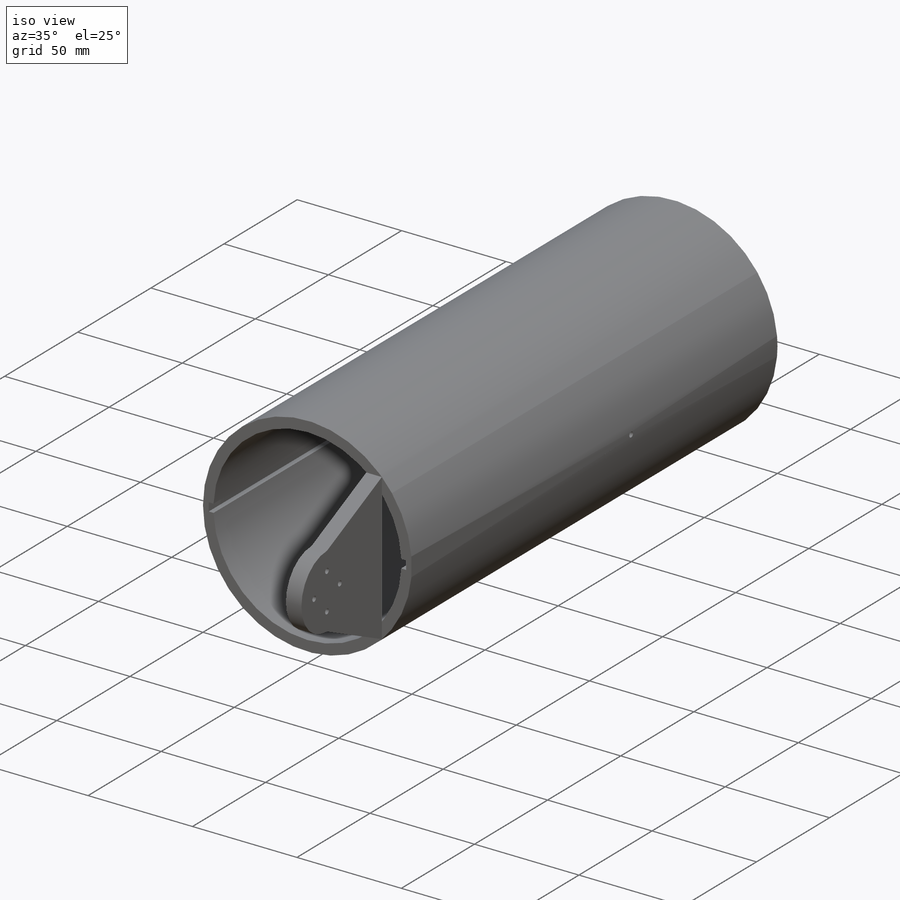
[diagram: iso view]
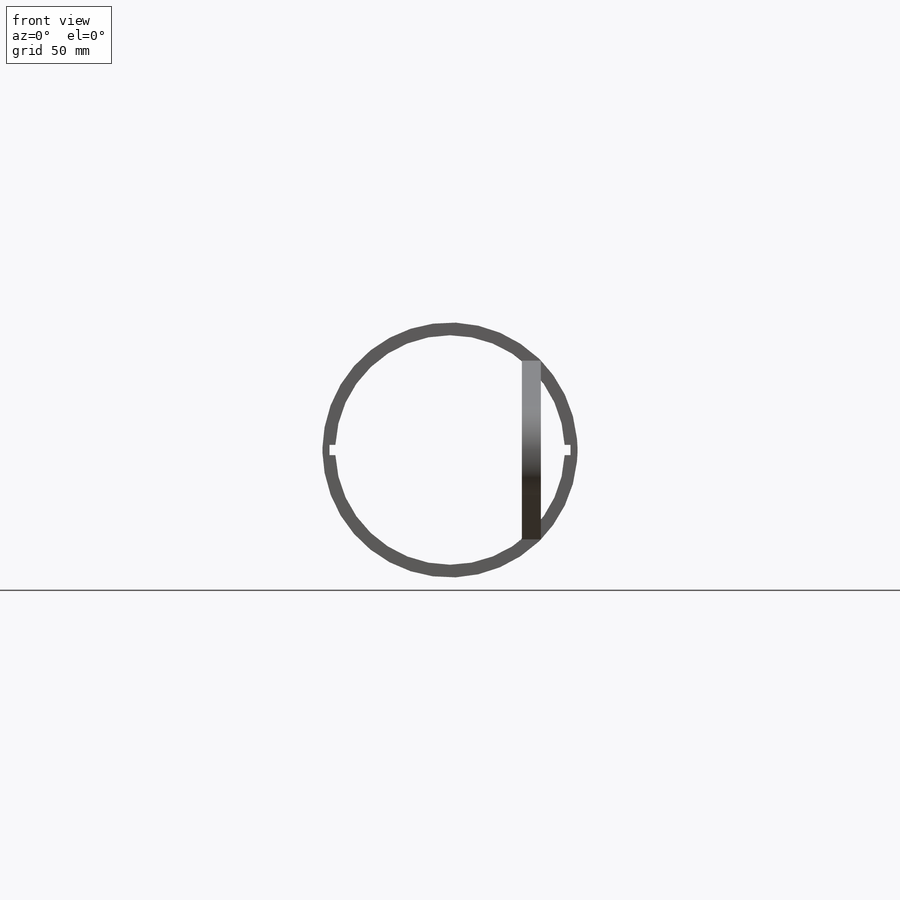
[diagram: front view]
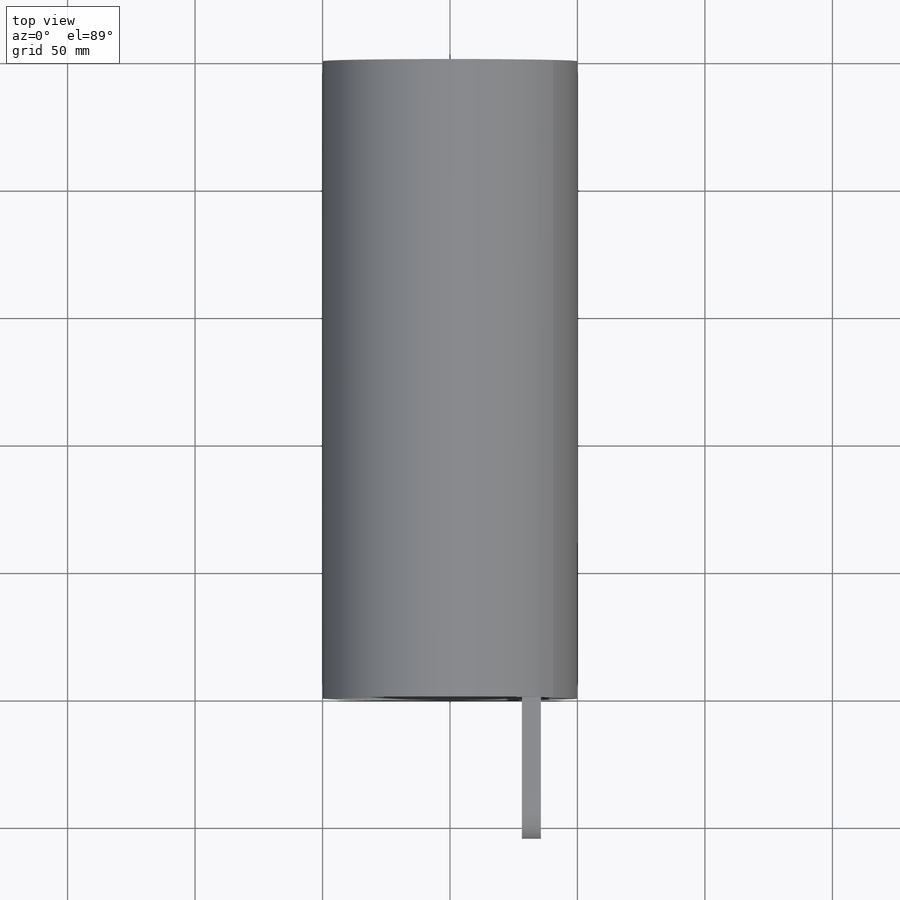
[diagram: top view]
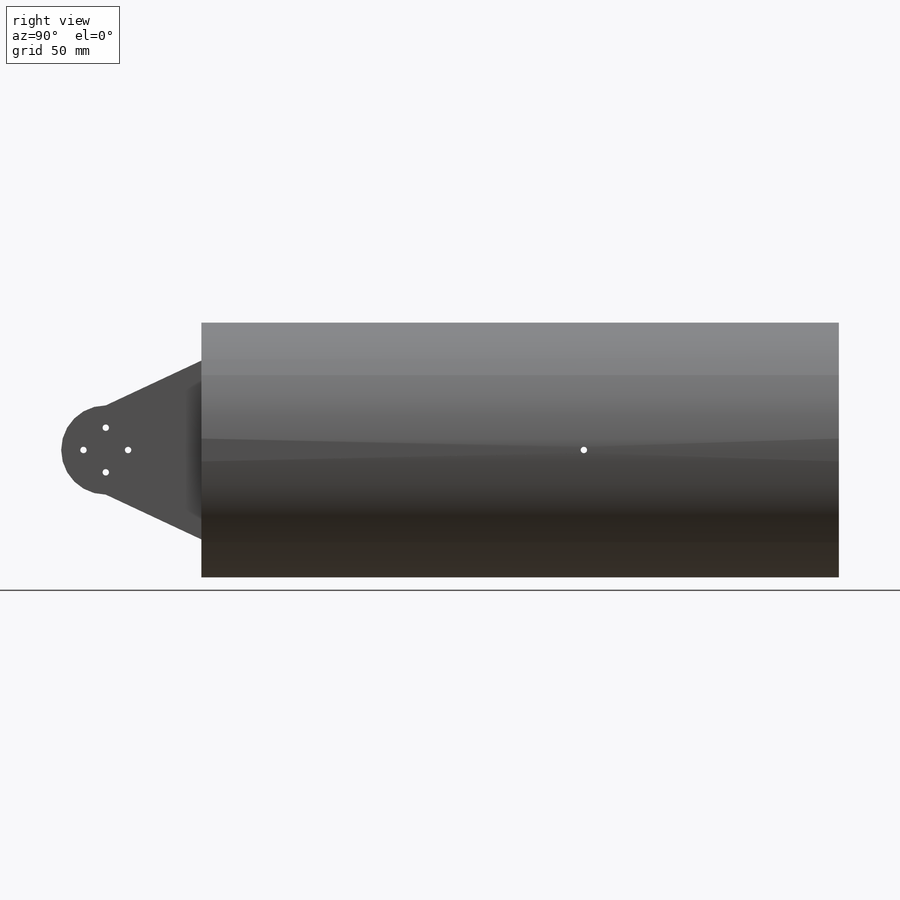
[diagram: right view]
SOLIDWORKS PART (.sldprt)
format: sldprt  version: not decoded by parser v0  size: 220,672 bytes
history: native  units: mm
features: sketch x6, cut_extrude x4, extrude x2, material x1 (+11 scaffold rows collapsed)
feature tree (24):
  scaffold x11  (default folders/planes/origin — collapsed)
  material  "Material <not specified>"
  sketch  "Sketch1"  dims[D1=~67.68044mm]
  extrude  "Boss-Extrude1"  Depth=250mm
  sketch  "Sketch3"  dims[D1=~35.067934mm]
  extrude  "Boss-Extrude2"  Depth=55mm
  sketch  "Sketch7"  dims[D1=150.0mm]
  cut_extrude  "Cut-Extrude4"  Depth=96mm
  sketch  "Sketch8"  dims[D1=~35.067934mm]
  cut_extrude  "Cut-Extrude5"  Depth=96mm
  sketch  "Sketch9"  dims[D1=~35.067934mm]
  cut_extrude  "Cut-Extrude6"  Depth=96mm
  sketch  "Sketch10"  dims[D1=17.5mm]
  cut_extrude  "Cut-Extrude7"  Depth=96mm
decode coverage: 12 of 12 modeling features carry decoded parameters
note: ~ marks probable driven/reference dimensions
note: suppression state not decoded; provenance and decode notes live in map.json
